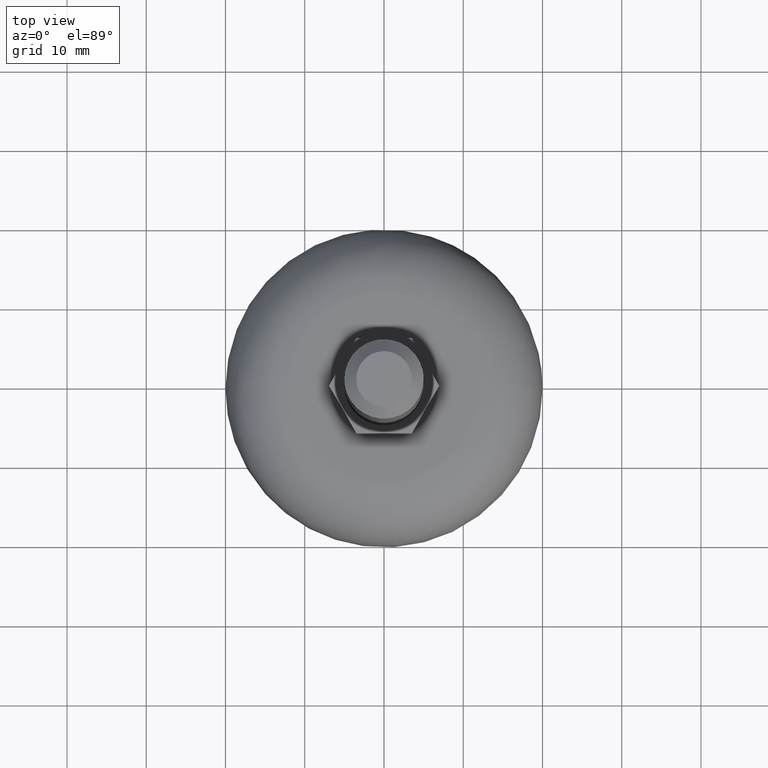
[diagram: clean part render]
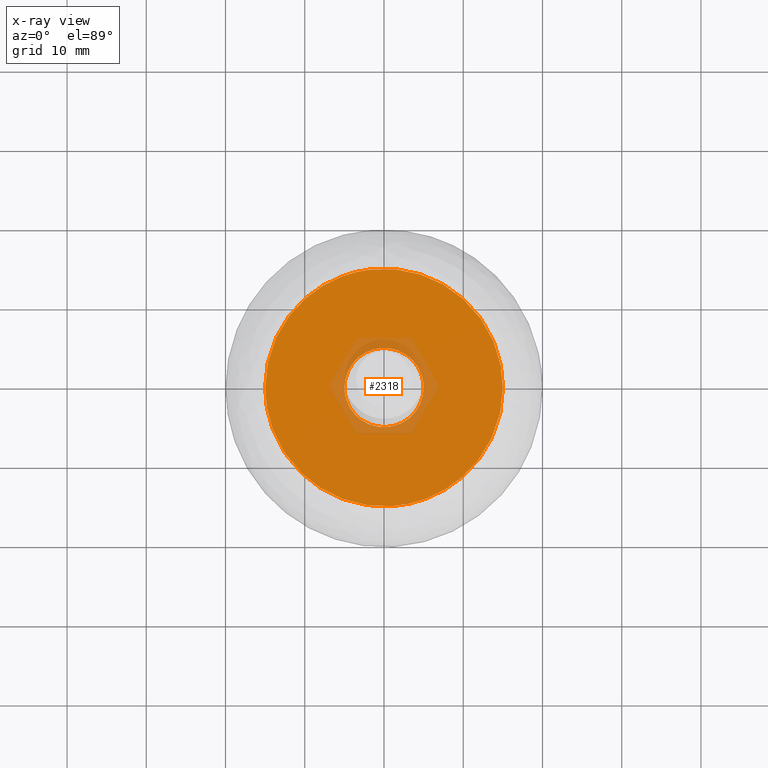
[diagram: x-ray — body ghosted, one internal face saturated and labeled with its STEP entity id]
A machine part, top view, then the same camera in x-ray: the body is ghosted and one INTERNAL B-rep face — a face not visible from any outside direction — is saturated and labeled: STEP entity #2318.
In plain terms, the highlighted face is a freeform B-spline surface patch.
Its self-contained STEP definition (entity closure, byte-faithful):
#1848=CARTESIAN_POINT('',(-1.770510908078454,14.895143205903331,9.499999999999957));
#1849=VERTEX_POINT('',#1848);
#1850=CARTESIAN_POINT('',(15.0,0.0,9.500000000000000));
#1851=VERTEX_POINT('',#1850);
#1852=CARTESIAN_POINT('',(-1.770510908078454,14.895143205903340,9.499999999999957));
#1853=CARTESIAN_POINT('',(-0.888360475086560,15.000000000000005,9.500000000000000));
#1854=CARTESIAN_POINT('',(0.0,15.0,9.500000000000000));
#1855=CARTESIAN_POINT('',(14.999999999999996,14.999999999999996,9.500000000000000));
#1856=CARTESIAN_POINT('',(15.0,0.0,9.500000000000000));
#1864=(BOUNDED_CURVE()B_SPLINE_CURVE(2,(#1852,#1853,#1854,#1855,#1856),.UNSPECIFIED.,.F.,.U.)B_SPLINE_CURVE_WITH_KNOTS((3,2,3),(0.229562503149339,0.250000000000000,0.500000000000000),.UNSPECIFIED.)CURVE()GEOMETRIC_REPRESENTATION_ITEM()RATIONAL_B_SPLINE_CURVE((0.956026812271148,0.976055983051680,1.0,0.707106781186547,1.0))REPRESENTATION_ITEM(''));
#1865=EDGE_CURVE('',#1849,#1851,#1864,.T.);
#1867=CARTESIAN_POINT('',(0.915716461267687,-14.972022687747550,9.500000000000579));
#1868=VERTEX_POINT('',#1867);
#1869=CARTESIAN_POINT('',(15.0,0.0,9.500000000000000));
#1870=CARTESIAN_POINT('',(15.000000000000004,-14.110601986584358,9.499999999999998));
#1871=CARTESIAN_POINT('',(0.915716461267687,-14.972022687747558,9.500000000000579));
#1879=(BOUNDED_CURVE()B_SPLINE_CURVE(2,(#1869,#1870,#1871),.UNSPECIFIED.,.F.,.U.)B_SPLINE_CURVE_WITH_KNOTS((3,3),(0.500000000000000,0.739333096293482),.UNSPECIFIED.)CURVE()GEOMETRIC_REPRESENTATION_ITEM()RATIONAL_B_SPLINE_CURVE((1.0,0.719603836232048,0.976072328971282))REPRESENTATION_ITEM(''));
#1880=EDGE_CURVE('',#1851,#1868,#1879,.T.);
#1947=CARTESIAN_POINT('',(-15.0,0.0,9.500000000000000));
#1948=VERTEX_POINT('',#1947);
#1949=CARTESIAN_POINT('',(-15.0,0.0,9.500000000000000));
#1950=CARTESIAN_POINT('',(-15.000000000000004,13.322620241755837,9.500000000000000));
#1951=CARTESIAN_POINT('',(-1.770510908078454,14.895143205903340,9.499999999999957));
#1959=(BOUNDED_CURVE()B_SPLINE_CURVE(2,(#1949,#1950,#1951),.UNSPECIFIED.,.F.,.U.)B_SPLINE_CURVE_WITH_KNOTS((3,3),(0.0,0.229562503149339),.UNSPECIFIED.)CURVE()GEOMETRIC_REPRESENTATION_ITEM()RATIONAL_B_SPLINE_CURVE((1.0,0.731050798134867,0.956026812271148))REPRESENTATION_ITEM(''));
#1960=EDGE_CURVE('',#1948,#1849,#1959,.T.);
#1994=CARTESIAN_POINT('',(0.915716461267687,-14.972022687747558,9.500000000000579));
#1995=CARTESIAN_POINT('',(0.458285617294439,-15.000000000000005,9.500000000000000));
#1996=CARTESIAN_POINT('',(0.0,-15.0,9.500000000000000));
#1997=CARTESIAN_POINT('',(-14.999999999999996,-14.999999999999996,9.500000000000000));
#1998=CARTESIAN_POINT('',(-15.0,0.0,9.500000000000000));
#2006=(BOUNDED_CURVE()B_SPLINE_CURVE(2,(#1994,#1995,#1996,#1997,#1998),.UNSPECIFIED.,.F.,.U.)B_SPLINE_CURVE_WITH_KNOTS((3,2,3),(0.739333096293482,0.750000000000000,1.0),.UNSPECIFIED.)CURVE()GEOMETRIC_REPRESENTATION_ITEM()RATIONAL_B_SPLINE_CURVE((0.976072328971282,0.987502944954500,1.0,0.707106781186547,1.0))REPRESENTATION_ITEM(''));
#2007=EDGE_CURVE('',#1868,#1948,#2006,.T.);
#2260=CARTESIAN_POINT('',(-4.999999999999901,0.0,9.500000000000000));
#2261=VERTEX_POINT('',#2260);
#2262=CARTESIAN_POINT('',(4.999999999999901,0.0,9.500000000000000));
#2263=VERTEX_POINT('',#2262);
#2264=CARTESIAN_POINT('',(-4.999999999999901,0.0,9.500000000000000));
#2265=CARTESIAN_POINT('',(-4.999999999999901,4.999999999999901,9.500000000000000));
#2266=CARTESIAN_POINT('',(0.0,4.999999999999901,9.500000000000000));
#2267=CARTESIAN_POINT('',(4.999999999999901,4.999999999999901,9.500000000000000));
#2268=CARTESIAN_POINT('',(4.999999999999901,0.0,9.500000000000000));
#2276=(BOUNDED_CURVE()B_SPLINE_CURVE(2,(#2264,#2265,#2266,#2267,#2268),.UNSPECIFIED.,.F.,.U.)B_SPLINE_CURVE_WITH_KNOTS((3,2,3),(0.0,0.250000000000000,0.500000000000000),.UNSPECIFIED.)CURVE()GEOMETRIC_REPRESENTATION_ITEM()RATIONAL_B_SPLINE_CURVE((1.0,0.707106781186547,1.0,0.707106781186547,1.0))REPRESENTATION_ITEM(''));
#2277=EDGE_CURVE('',#2261,#2263,#2276,.T.);
#2279=CARTESIAN_POINT('',(4.999999999999901,0.0,9.500000000000000));
#2280=CARTESIAN_POINT('',(4.999999999999901,-4.999999999999901,9.500000000000000));
#2281=CARTESIAN_POINT('',(0.0,-4.999999999999901,9.500000000000000));
#2282=CARTESIAN_POINT('',(-4.999999999999901,-4.999999999999901,9.500000000000000));
#2283=CARTESIAN_POINT('',(-4.999999999999901,0.0,9.500000000000000));
#2291=(BOUNDED_CURVE()B_SPLINE_CURVE(2,(#2279,#2280,#2281,#2282,#2283),.UNSPECIFIED.,.F.,.U.)B_SPLINE_CURVE_WITH_KNOTS((3,2,3),(0.500000000000000,0.750000000000000,1.0),.UNSPECIFIED.)CURVE()GEOMETRIC_REPRESENTATION_ITEM()RATIONAL_B_SPLINE_CURVE((1.0,0.707106781186547,1.0,0.707106781186547,1.0))REPRESENTATION_ITEM(''));
#2292=EDGE_CURVE('',#2263,#2261,#2291,.T.);
#2303=CARTESIAN_POINT('',(-16.498499941854181,-16.498135418423988,9.500000000000000));
#2304=CARTESIAN_POINT('',(16.498500746516889,-16.498135418423988,9.500000000000000));
#2305=CARTESIAN_POINT('',(-16.498499941854181,16.498227149972291,9.500000000000000));
#2306=CARTESIAN_POINT('',(16.498500746516889,16.498227149972291,9.500000000000000));
#2307=B_SPLINE_SURFACE_WITH_KNOTS('',1,1,((#2303,#2305),(#2304,#2306)),.UNSPECIFIED.,.F.,.F.,.U.,(2,2),(2,2),(0.0,32.997000688371060),(0.0,32.996362568396279),.UNSPECIFIED.);
#2308=ORIENTED_EDGE('',*,*,#2007,.F.);
#2309=ORIENTED_EDGE('',*,*,#1880,.F.);
#2310=ORIENTED_EDGE('',*,*,#1865,.F.);
#2311=ORIENTED_EDGE('',*,*,#1960,.F.);
#2312=EDGE_LOOP('',(#2308,#2309,#2310,#2311));
#2313=FACE_OUTER_BOUND('',#2312,.T.);
#2314=ORIENTED_EDGE('',*,*,#2277,.T.);
#2315=ORIENTED_EDGE('',*,*,#2292,.T.);
#2316=EDGE_LOOP('',(#2314,#2315));
#2317=FACE_BOUND('',#2316,.T.);
#2318=ADVANCED_FACE('',(#2313,#2317),#2307,.T.);